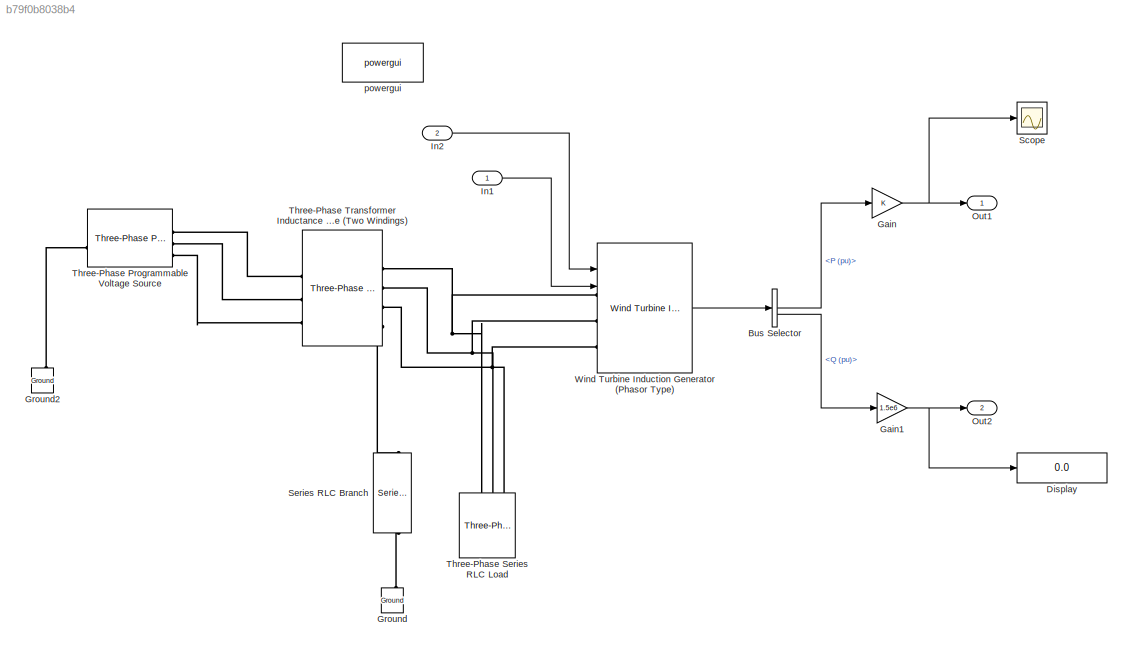
MODEL slx_b79f0b8038b4
KIND model
CONFIG AbsTol = auto
CONFIG EnableMultiTasking = off
CONFIG FixedStep = auto
CONFIG MaxStep = auto
CONFIG MinStep = auto
CONFIG RelTol = 1e-3
CONFIG SampleTimeConstraint = Unconstrained
CONFIG SolverName = VariableStepAuto
CONFIG StartTime = 0.0
CONFIG StopTime = 30.0
BLOCK [BusSelector] Bus Selector
  OutputSignals = P (pu),Q (pu)
BLOCK [Display] Display
  Decimation = 1
BLOCK [Gain] Gain
BLOCK [Gain] Gain1
  Gain = 1.5e6
BLOCK [Reference] Ground  REF=spsGroundLib/Ground
  LibrarySourceBlock = sps_lib/Utilities/Ground
  NameLocation = right
  SourceBlock = spsGroundLib/Ground
  SourceType = Ground
BLOCK [Reference] Ground2  REF=spsGroundLib/Ground
  LibrarySourceBlock = sps_lib/Utilities/Ground
  NameLocation = right
  SourceBlock = spsGroundLib/Ground
  SourceType = Ground
BLOCK [Inport] In1
BLOCK [Inport] In2
  Port = 2
BLOCK [Outport] Out1
BLOCK [Outport] Out2
  Port = 2
BLOCK [Scope] Scope
  Floating = off
  NumInputPorts = 1
  ScopeSpecificationString = Simulink.scopes.TimeScopeBlockCfg('CurrentConfiguration', extmgr.ConfigurationSet(extmgr.Configuration('Core','General UI',true),extmgr.Configuration('Core','Source UI',true),extmgr.Configuration('Sources','WiredSimulink',true),extmgr.Configuration('Visuals','Time Domain',true),extmgr.Configuration('Tools','Plot Navigation',true),extmgr.Configuration('Tools','Measurements',true)),'Version','2022b'...<+1ch>
BLOCK [Reference] Series RLC Branch  REF=spsSeriesRLCBranchLib/Series RLC Branch
  LibrarySourceBlock = sps_lib/Passives/Series RLC Branch
  NameLocation = left
  SourceBlock = spsSeriesRLCBranchLib/Series RLC Branch
  SourceType = Series RLC Branch
BLOCK [Reference] Three-Phase Programmable Voltage Source  REF=spsThreePhaseProgrammableVoltageSourceLib/Three-Phase
Programmable
Voltage Source
  LibrarySourceBlock = sps_lib/Sources/Three-Phase\nProgrammable\nVoltage Source
  SourceBlock = spsThreePhaseProgrammableVoltageSourceLib/Three-Phase\nProgrammable\nVoltage Source
  SourceType = Three-Phase Programmable Voltage Source
BLOCK [Reference] Three-Phase Series RLC Load  REF=spsThreePhaseSeriesRLCLoadLib/Three-Phase
Series RLC Load
  AttributesFormatString = \n
  LibrarySourceBlock = sps_lib/Passives/Three-Phase\nSeries RLC Load
  SourceBlock = spsThreePhaseSeriesRLCLoadLib/Three-Phase\nSeries RLC Load
  SourceType = Three-Phase Series RLC Load
BLOCK [Reference] Three-Phase Transformer Inductance Matrix Type (Two Windings)  REF=spsThreePhaseTransformerInductanceMatrixTypeTwoWindingsLib/Three-Phase Transformer
Inductance Matrix Type
(Two Windings)
  LibrarySourceBlock = sps_lib/Power Grid Elements/Three-Phase Transformer\nInductance Matrix Type\n(Two Windings)
  SourceBlock = spsThreePhaseTransformerInductanceMatrixTypeTwoWindingsLib/Three-Phase Transformer\nInductance Matrix Type\n(Two Windings)
  SourceType = Three-Phase Transformer Inductance MatrixType (Two Windings)
BLOCK [Reference] Wind Turbine Induction Generator (Phasor Type)  REF=spsWindTurbineInductionGeneratorPhasorTypeLib/Wind Turbine
Induction Generator
(Phasor Type)
  LibrarySourceBlock = sps_lib/Electrical Machines/Wind Turbine\nInduction Generator\n(Phasor Type)
  SourceBlock = spsWindTurbineInductionGeneratorPhasorTypeLib/Wind Turbine\nInduction Generator\n(Phasor Type)
  SourceType = Wind Turbine Induction Generator (Phasor Type)
BLOCK [Reference] powergui  REF=spspowerguiLib/powergui
  LibrarySourceBlock = sps_lib/powergui
  Priority = 1
  SourceBlock = spspowerguiLib/powergui
  SourceType = PSB option menu block
LINE Bus Selector:1 -> Gain:1
LINE Bus Selector:2 -> Gain1:1
NET Gain1:1 -> Display:1, Out2:1
NET Gain:1 -> Out1:1, Scope:1
LINE In1:1 -> Wind Turbine Induction Generator (Phasor Type):2
LINE In2:1 -> Wind Turbine Induction Generator (Phasor Type):1
LINE Wind Turbine Induction Generator (Phasor Type):1 -> Bus Selector:1
PLINE Ground2:LConn1 -- Three-Phase Programmable Voltage Source:LConn1
PLINE Ground:LConn1 -- Series RLC Branch:RConn1
PLINE Series RLC Branch:LConn1 -- Three-Phase Transformer Inductance Matrix Type (Two Windings):RConn4
PLINE Three-Phase Programmable Voltage Source:RConn1 -- Three-Phase Transformer Inductance Matrix Type (Two Windings):LConn1
PLINE Three-Phase Programmable Voltage Source:RConn2 -- Three-Phase Transformer Inductance Matrix Type (Two Windings):LConn2
PLINE Three-Phase Programmable Voltage Source:RConn3 -- Three-Phase Transformer Inductance Matrix Type (Two Windings):LConn3
PNET net1: Three-Phase Series RLC Load:LConn1 -- Three-Phase Transformer Inductance Matrix Type (Two Windings):RConn1 -- Wind Turbine Induction Generator (Phasor Type):LConn1
PNET net2: Three-Phase Series RLC Load:LConn2 -- Three-Phase Transformer Inductance Matrix Type (Two Windings):RConn2 -- Wind Turbine Induction Generator (Phasor Type):LConn2
PNET net3: Three-Phase Series RLC Load:LConn3 -- Three-Phase Transformer Inductance Matrix Type (Two Windings):RConn3 -- Wind Turbine Induction Generator (Phasor Type):LConn3
note: NET lines group one-source signal fan-out (src -> all destinations, sorted); 1:1 wires keep LINE; PNET lines group multi-terminal physical nets as a canonical sorted terminal list (undirected conserving connections); 2-terminal nets keep the pairwise PLINE form
